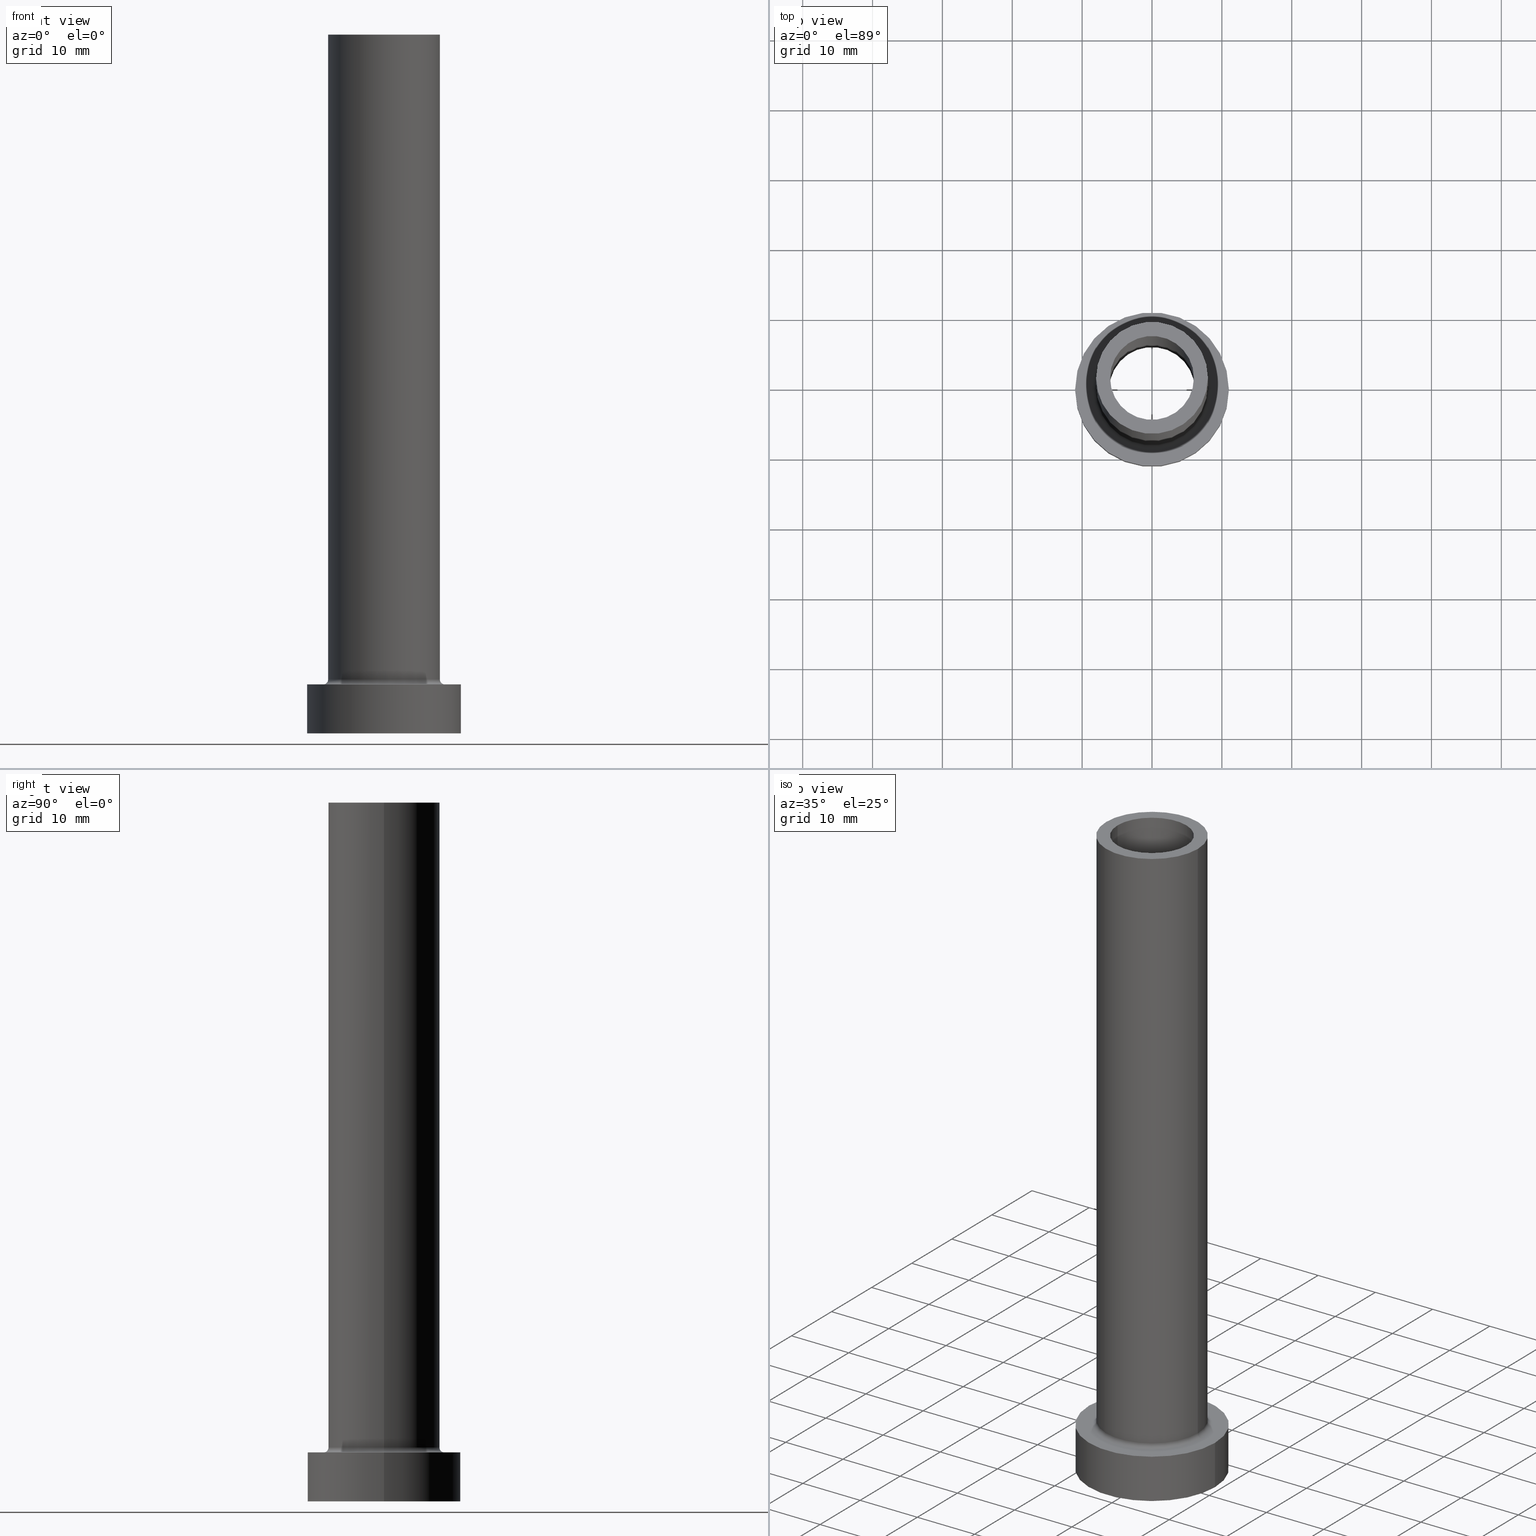
[diagram: canonical four-view strip — front | top / right | iso, engineering-drawing reading convention]
A machine part, canonical four-view strip (front | top / right | iso — engineering-drawing reading convention). The complete STEP part file that produces these views, byte-faithful:
ISO-10303-21;
HEADER;
FILE_DESCRIPTION (( 'STEP AP203' ),
    '1' );
FILE_NAME ('b1f9.STEP',
    '2023-02-13T09:09:03',
    ( '' ),
    ( '' ),
    'SwSTEP 2.0',
    'SolidWorks 2019',
    '' );
FILE_SCHEMA (( 'CONFIG_CONTROL_DESIGN' ));
ENDSEC;

DATA;
#1 = CYLINDRICAL_SURFACE ( 'NONE', #46, 8.000000000000000000 ) ;
#2 = ORIENTED_EDGE ( 'NONE', *, *, #390, .F. ) ;
#3 = DIRECTION ( 'NONE',  ( 1.000000000000000000, 0.000000000000000000, 0.000000000000000000 ) ) ;
#4 = ORIENTED_EDGE ( 'NONE', *, *, #104, .T. ) ;
#5 = LINE ( 'NONE', #253, #378 ) ;
#6 = VERTEX_POINT ( 'NONE', #13 ) ;
#7 = ADVANCED_FACE ( 'NONE', ( #339 ), #224, .F. ) ;
#8 = AXIS2_PLACEMENT_3D ( 'NONE', #307, #420, #98 ) ;
#9 = CIRCLE ( 'NONE', #139, 6.000000000000000888 ) ;
#10 = DIRECTION ( 'NONE',  ( -0.000000000000000000, -0.000000000000000000, -1.000000000000000000 ) ) ;
#11 = VERTEX_POINT ( 'NONE', #305 ) ;
#12 = CALENDAR_DATE ( 2023, 13, 2 ) ;
#13 = CARTESIAN_POINT ( 'NONE',  ( 8.000000000000000000, 9.797174393178823685E-16, 100.0000000000000000 ) ) ;
#14 = ORIENTED_EDGE ( 'NONE', *, *, #374, .F. ) ;
#15 = CARTESIAN_POINT ( 'NONE',  ( 6.150000000000000355, 7.531577814756222064E-16, 72.39482681718907031 ) ) ;
#16 = AXIS2_PLACEMENT_3D ( 'NONE', #105, #324, #70 ) ;
#17 = DIRECTION ( 'NONE',  ( 0.000000000000000000, 0.000000000000000000, 1.000000000000000000 ) ) ;
#18 = CARTESIAN_POINT ( 'NONE',  ( 0.000000000000000000, 0.000000000000000000, 7.699999999999998401 ) ) ;
#19 = DIRECTION ( 'NONE',  ( -0.000000000000000000, -0.000000000000000000, -1.000000000000000000 ) ) ;
#20 = DATE_TIME_ROLE ( 'creation_date' ) ;
#21 = CARTESIAN_POINT ( 'NONE',  ( 0.000000000000000000, 0.000000000000000000, 55.00000000000000711 ) ) ;
#22 = EDGE_CURVE ( 'NONE', #282, #147, #440, .T. ) ;
#23 = CARTESIAN_POINT ( 'NONE',  ( 0.000000000000000000, 0.000000000000000000, 55.00000000000000711 ) ) ;
#24 = CIRCLE ( 'NONE', #152, 8.000000000000000000 ) ;
#25 = CC_DESIGN_DATE_AND_TIME_ASSIGNMENT ( #59, #270, ( #92 ) ) ;
#26 = DATE_AND_TIME ( #379, #311 ) ;
#27 = FACE_OUTER_BOUND ( 'NONE', #296, .T. ) ;
#28 = EDGE_CURVE ( 'NONE', #443, #284, #53, .T. ) ;
#29 = DIRECTION ( 'NONE',  ( 0.000000000000000000, 0.000000000000000000, -1.000000000000000000 ) ) ;
#30 = CARTESIAN_POINT ( 'NONE',  ( 0.000000000000000000, 0.000000000000000000, 100.0000000000000000 ) ) ;
#31 = AXIS2_PLACEMENT_3D ( 'NONE', #315, #456, #142 ) ;
#32 = APPROVAL_DATE_TIME ( #26, #73 ) ;
#33 = CARTESIAN_POINT ( 'NONE',  ( 0.000000000000000000, 0.000000000000000000, 55.00000000000000711 ) ) ;
#34 = DIRECTION ( 'NONE',  ( 0.000000000000000000, 0.000000000000000000, 1.000000000000000000 ) ) ;
#35 = ORIENTED_EDGE ( 'NONE', *, *, #277, .T. ) ;
#36 = DIRECTION ( 'NONE',  ( 0.000000000000000000, 0.000000000000000000, 1.000000000000000000 ) ) ;
#37 = ORIENTED_EDGE ( 'NONE', *, *, #61, .T. ) ;
#38 = VECTOR ( 'NONE', #419, 1000.000000000000000 ) ;
#39 =( GEOMETRIC_REPRESENTATION_CONTEXT ( 3 ) GLOBAL_UNCERTAINTY_ASSIGNED_CONTEXT ( ( #222 ) ) GLOBAL_UNIT_ASSIGNED_CONTEXT ( ( #338, #164, #444 ) ) REPRESENTATION_CONTEXT ( 'NONE', 'WORKASPACE' ) );
#40 = CARTESIAN_POINT ( 'NONE',  ( -8.699999999999999289, 1.065442715258197248E-15, 7.699999999999998401 ) ) ;
#41 = ORIENTED_EDGE ( 'NONE', *, *, #414, .T. ) ;
#42 = CARTESIAN_POINT ( 'NONE',  ( -8.000000000000000000, 0.000000000000000000, 100.0000000000000000 ) ) ;
#43 = ORIENTED_EDGE ( 'NONE', *, *, #329, .T. ) ;
#44 = CARTESIAN_POINT ( 'NONE',  ( 0.000000000000000000, 0.000000000000000000, 7.000000000000000000 ) ) ;
#45 = VERTEX_POINT ( 'NONE', #363 ) ;
#46 = AXIS2_PLACEMENT_3D ( 'NONE', #211, #394, #360 ) ;
#47 = DIRECTION ( 'NONE',  ( 1.000000000000000000, 0.000000000000000000, 0.000000000000000000 ) ) ;
#48 = CC_DESIGN_DATE_AND_TIME_ASSIGNMENT ( #330, #20, ( #396 ) ) ;
#49 = DIRECTION ( 'NONE',  ( -0.000000000000000000, -0.000000000000000000, -1.000000000000000000 ) ) ;
#50 = ORIENTED_EDGE ( 'NONE', *, *, #457, .F. ) ;
#51 = LINE ( 'NONE', #15, #145 ) ;
#52 = ORIENTED_EDGE ( 'NONE', *, *, #86, .T. ) ;
#53 = CIRCLE ( 'NONE', #239, 8.699999999999999289 ) ;
#54 = APPROVAL_ROLE ( '' ) ;
#55 = APPROVAL_PERSON_ORGANIZATION ( #127, #301, #261 ) ;
#56 = ORIENTED_EDGE ( 'NONE', *, *, #22, .T. ) ;
#57 = PERSON_AND_ORGANIZATION ( #260, #226 ) ;
#58 = DIRECTION ( 'NONE',  ( 1.000000000000000000, 0.000000000000000000, 0.000000000000000000 ) ) ;
#59 = DATE_AND_TIME ( #237, #196 ) ;
#60 = PLANE ( 'NONE',  #160 ) ;
#61 = EDGE_CURVE ( 'NONE', #126, #320, #243, .T. ) ;
#62 = CIRCLE ( 'NONE', #335, 8.000000000000000000 ) ;
#63 = DIRECTION ( 'NONE',  ( 1.000000000000000000, 0.000000000000000000, -0.000000000000000000 ) ) ;
#64 = CIRCLE ( 'NONE', #441, 8.000000000000000000 ) ;
#65 = EDGE_CURVE ( 'NONE', #430, #151, #163, .T. ) ;
#66 = CYLINDRICAL_SURFACE ( 'NONE', #416, 6.000000000000000888 ) ;
#67 = DIRECTION ( 'NONE',  ( 0.000000000000000000, 0.000000000000000000, 1.000000000000000000 ) ) ;
#68 = PLANE ( 'NONE',  #297 ) ;
#69 = AXIS2_PLACEMENT_3D ( 'NONE', #429, #327, #351 ) ;
#70 = DIRECTION ( 'NONE',  ( 1.000000000000000000, 0.000000000000000000, 0.000000000000000000 ) ) ;
#71 = CARTESIAN_POINT ( 'NONE',  ( -8.699999999999999289, 1.065442715258197248E-15, 6.999999999999999112 ) ) ;
#72 = EDGE_LOOP ( 'NONE', ( #52, #199, #249, #433 ) ) ;
#73 = APPROVAL ( #207, 'NEUR�EN�' ) ;
#74 = FACE_OUTER_BOUND ( 'NONE', #395, .T. ) ;
#75 = ORIENTED_EDGE ( 'NONE', *, *, #193, .F. ) ;
#76 = AXIS2_PLACEMENT_3D ( 'NONE', #44, #244, #185 ) ;
#77 = DIRECTION ( 'NONE',  ( -0.000000000000000000, -0.000000000000000000, -1.000000000000000000 ) ) ;
#78 = EDGE_LOOP ( 'NONE', ( #80, #436 ) ) ;
#79 = DIRECTION ( 'NONE',  ( 1.000000000000000000, 0.000000000000000000, 0.000000000000000000 ) ) ;
#80 = ORIENTED_EDGE ( 'NONE', *, *, #28, .T. ) ;
#81 = DATE_AND_TIME ( #12, #336 ) ;
#82 = ORIENTED_EDGE ( 'NONE', *, *, #434, .F. ) ;
#83 = CIRCLE ( 'NONE', #106, 0.7000000000000000666 ) ;
#84 = AXIS2_PLACEMENT_3D ( 'NONE', #319, #34, #79 ) ;
#85 = CARTESIAN_POINT ( 'NONE',  ( 0.000000000000000000, 0.000000000000000000, 55.00000000000000711 ) ) ;
#86 = EDGE_CURVE ( 'NONE', #147, #282, #265, .T. ) ;
#87 = ORIENTED_EDGE ( 'NONE', *, *, #404, .T. ) ;
#88 = COORDINATED_UNIVERSAL_TIME_OFFSET ( 1, 0, .AHEAD. ) ;
#89 = DIRECTION ( 'NONE',  ( 1.000000000000000000, 0.000000000000000000, 0.000000000000000000 ) ) ;
#90 = AXIS2_PLACEMENT_3D ( 'NONE', #33, #275, #421 ) ;
#91 = COORDINATED_UNIVERSAL_TIME_OFFSET ( 1, 0, .AHEAD. ) ;
#92 = SECURITY_CLASSIFICATION ( '', '', #451 ) ;
#93 = EDGE_LOOP ( 'NONE', ( #325, #50 ) ) ;
#94 = CARTESIAN_POINT ( 'NONE',  ( 0.000000000000000000, 0.000000000000000000, 7.000000000000000000 ) ) ;
#95 = FACE_OUTER_BOUND ( 'NONE', #214, .T. ) ;
#96 = COORDINATED_UNIVERSAL_TIME_OFFSET ( 1, 0, .AHEAD. ) ;
#97 = AXIS2_PLACEMENT_3D ( 'NONE', #300, #445, #408 ) ;
#98 = DIRECTION ( 'NONE',  ( -1.000000000000000000, 0.000000000000000000, 0.000000000000000000 ) ) ;
#99 = PRODUCT_DEFINITION_FORMATION_WITH_SPECIFIED_SOURCE ( 'LIBOVOLN�', '', #180, .NOT_KNOWN. ) ;
#100 = MANIFOLD_SOLID_BREP ( 'Odebrat vysunut�m4', #286 ) ;
#101 = CYLINDRICAL_SURFACE ( 'NONE', #8, 6.000000000000000888 ) ;
#102 = CC_DESIGN_PERSON_AND_ORGANIZATION_ASSIGNMENT ( #156, #293, ( #99 ) ) ;
#103 = CARTESIAN_POINT ( 'NONE',  ( -11.00000000000000000, 0.000000000000000000, 7.000000000000000000 ) ) ;
#104 = EDGE_CURVE ( 'NONE', #144, #149, #62, .T. ) ;
#105 = CARTESIAN_POINT ( 'NONE',  ( 0.000000000000000000, 0.000000000000000000, 55.00000000000000711 ) ) ;
#106 = AXIS2_PLACEMENT_3D ( 'NONE', #312, #413, #29 ) ;
#107 = APPROVAL_PERSON_ORGANIZATION ( #368, #347, #54 ) ;
#108 = DIRECTION ( 'NONE',  ( 1.000000000000000000, 0.000000000000000000, 0.000000000000000000 ) ) ;
#109 = EDGE_CURVE ( 'NONE', #126, #45, #192, .T. ) ;
#110 = EDGE_CURVE ( 'NONE', #284, #443, #422, .T. ) ;
#111 = ORIENTED_EDGE ( 'NONE', *, *, #374, .T. ) ;
#112 = CARTESIAN_POINT ( 'NONE',  ( 0.000000000000000000, 0.000000000000000000, 100.0000000000000000 ) ) ;
#113 = EDGE_LOOP ( 'NONE', ( #230, #162 ) ) ;
#114 = ADVANCED_FACE ( 'NONE', ( #331 ), #258, .T. ) ;
#115 = DIRECTION ( 'NONE',  ( 1.000000000000000000, 0.000000000000000000, 0.000000000000000000 ) ) ;
#116 = EDGE_LOOP ( 'NONE', ( #369, #223, #287, #359 ) ) ;
#117 = AXIS2_PLACEMENT_3D ( 'NONE', #85, #372, #58 ) ;
#118 = CC_DESIGN_APPROVAL ( #73, ( #92 ) ) ;
#119 = PLANE ( 'NONE',  #215 ) ;
#120 = ORIENTED_EDGE ( 'NONE', *, *, #438, .F. ) ;
#121 = DATE_AND_TIME ( #407, #272 ) ;
#122 = ORIENTED_EDGE ( 'NONE', *, *, #110, .F. ) ;
#123 = EDGE_LOOP ( 'NONE', ( #357, #410, #128, #197 ) ) ;
#124 = AXIS2_PLACEMENT_3D ( 'NONE', #391, #10, #181 ) ;
#125 = MECHANICAL_CONTEXT ( 'NONE', #418, 'mechanical' ) ;
#126 = VERTEX_POINT ( 'NONE', #103 ) ;
#127 = PERSON_AND_ORGANIZATION ( #260, #226 ) ;
#128 = ORIENTED_EDGE ( 'NONE', *, *, #377, .F. ) ;
#129 = ADVANCED_FACE ( 'NONE', ( #453, #27 ), #60, .F. ) ;
#130 = CARTESIAN_POINT ( 'NONE',  ( 0.000000000000000000, 0.000000000000000000, 0.000000000000000000 ) ) ;
#131 = DIRECTION ( 'NONE',  ( 0.000000000000000000, 0.000000000000000000, -1.000000000000000000 ) ) ;
#132 = SHAPE_DEFINITION_REPRESENTATION ( #141, #216 ) ;
#133 = DIRECTION ( 'NONE',  ( 1.000000000000000000, 0.000000000000000000, 0.000000000000000000 ) ) ;
#134 = DIRECTION ( 'NONE',  ( 0.000000000000000000, 0.000000000000000000, -1.000000000000000000 ) ) ;
#135 = PERSON_AND_ORGANIZATION ( #260, #226 ) ;
#136 = DIRECTION ( 'NONE',  ( -1.000000000000000000, 0.000000000000000000, 0.000000000000000000 ) ) ;
#137 = CIRCLE ( 'NONE', #195, 8.000000000000000000 ) ;
#138 = CARTESIAN_POINT ( 'NONE',  ( -6.150000000000000355, 0.000000000000000000, 0.000000000000000000 ) ) ;
#139 = AXIS2_PLACEMENT_3D ( 'NONE', #285, #427, #3 ) ;
#140 = DIRECTION ( 'NONE',  ( 1.000000000000000000, 0.000000000000000000, 0.000000000000000000 ) ) ;
#141 = PRODUCT_DEFINITION_SHAPE ( 'NONE', 'NONE',  #396 ) ;
#142 = DIRECTION ( 'NONE',  ( 1.000000000000000000, 0.000000000000000000, 0.000000000000000000 ) ) ;
#143 = DIRECTION ( 'NONE',  ( -0.000000000000000000, -0.000000000000000000, -1.000000000000000000 ) ) ;
#144 = VERTEX_POINT ( 'NONE', #168 ) ;
#145 = VECTOR ( 'NONE', #262, 1000.000000000000000 ) ;
#146 = DIRECTION ( 'NONE',  ( -1.000000000000000000, 0.000000000000000000, 0.000000000000000000 ) ) ;
#147 = VERTEX_POINT ( 'NONE', #309 ) ;
#148 = CARTESIAN_POINT ( 'NONE',  ( 0.000000000000000000, 0.000000000000000000, 0.000000000000000000 ) ) ;
#149 = VERTEX_POINT ( 'NONE', #238 ) ;
#150 = CARTESIAN_POINT ( 'NONE',  ( 11.00000000000000000, 1.347111479062088405E-15, 7.000000000000000000 ) ) ;
#151 = VERTEX_POINT ( 'NONE', #201 ) ;
#152 = AXIS2_PLACEMENT_3D ( 'NONE', #432, #177, #115 ) ;
#153 = FACE_OUTER_BOUND ( 'NONE', #113, .T. ) ;
#154 = VERTEX_POINT ( 'NONE', #340 ) ;
#155 = ADVANCED_FACE ( 'NONE', ( #166 ), #308, .F. ) ;
#156 = PERSON_AND_ORGANIZATION ( #260, #226 ) ;
#157 = ORIENTED_EDGE ( 'NONE', *, *, #193, .T. ) ;
#158 = CC_DESIGN_PERSON_AND_ORGANIZATION_ASSIGNMENT ( #57, #198, ( #99 ) ) ;
#159 = CARTESIAN_POINT ( 'NONE',  ( 0.000000000000000000, 0.000000000000000000, 7.000000000000000000 ) ) ;
#160 = AXIS2_PLACEMENT_3D ( 'NONE', #23, #240, #169 ) ;
#161 = PERSON_AND_ORGANIZATION_ROLE ( 'design_owner' ) ;
#162 = ORIENTED_EDGE ( 'NONE', *, *, #266, .T. ) ;
#163 = LINE ( 'NONE', #447, #208 ) ;
#164 =( NAMED_UNIT ( * ) PLANE_ANGLE_UNIT ( ) SI_UNIT ( $, .RADIAN. ) );
#165 = CARTESIAN_POINT ( 'NONE',  ( 0.000000000000000000, 0.000000000000000000, 7.699999999999998401 ) ) ;
#166 = FACE_OUTER_BOUND ( 'NONE', #72, .T. ) ;
#167 = COORDINATED_UNIVERSAL_TIME_OFFSET ( 1, 0, .AHEAD. ) ;
#168 = CARTESIAN_POINT ( 'NONE',  ( 8.000000000000000000, 9.797174393178823685E-16, 7.699999999999998401 ) ) ;
#169 = DIRECTION ( 'NONE',  ( 1.000000000000000000, 0.000000000000000000, -0.000000000000000000 ) ) ;
#170 = TOROIDAL_SURFACE ( 'NONE', #31, 8.699999999999999289, 0.6999999999999999556 ) ;
#171 = DIRECTION ( 'NONE',  ( 0.000000000000000000, 0.000000000000000000, 1.000000000000000000 ) ) ;
#172 = CC_DESIGN_SECURITY_CLASSIFICATION ( #92, ( #99 ) ) ;
#173 = FACE_OUTER_BOUND ( 'NONE', #123, .T. ) ;
#174 = APPLICATION_CONTEXT ( 'configuration controlled 3d designs of mechanical parts and assemblies' ) ;
#175 = CARTESIAN_POINT ( 'NONE',  ( 0.000000000000000000, 0.000000000000000000, 0.000000000000000000 ) ) ;
#176 = ORIENTED_EDGE ( 'NONE', *, *, #28, .F. ) ;
#177 = DIRECTION ( 'NONE',  ( 0.000000000000000000, 0.000000000000000000, 1.000000000000000000 ) ) ;
#178 = ORIENTED_EDGE ( 'NONE', *, *, #22, .F. ) ;
#179 = AXIS2_PLACEMENT_3D ( 'NONE', #175, #36, #108 ) ;
#180 = PRODUCT ( 'b1f9', 'b1f9', '', ( #125 ) ) ;
#181 = DIRECTION ( 'NONE',  ( -1.000000000000000000, 0.000000000000000000, 0.000000000000000000 ) ) ;
#182 = VERTEX_POINT ( 'NONE', #138 ) ;
#183 = DIRECTION ( 'NONE',  ( -0.000000000000000000, -0.000000000000000000, -1.000000000000000000 ) ) ;
#184 = EDGE_LOOP ( 'NONE', ( #228, #218, #157, #122 ) ) ;
#185 = DIRECTION ( 'NONE',  ( 1.000000000000000000, 0.000000000000000000, 0.000000000000000000 ) ) ;
#186 = EDGE_LOOP ( 'NONE', ( #82, #56, #367, #43 ) ) ;
#187 = ADVANCED_FACE ( 'NONE', ( #173 ), #101, .F. ) ;
#188 = AXIS2_PLACEMENT_3D ( 'NONE', #458, #143, #279 ) ;
#189 = PERSON_AND_ORGANIZATION ( #260, #226 ) ;
#190 = ORIENTED_EDGE ( 'NONE', *, *, #109, .F. ) ;
#191 = ADVANCED_FACE ( 'NONE', ( #206 ), #66, .F. ) ;
#192 = LINE ( 'NONE', #439, #310 ) ;
#193 = EDGE_CURVE ( 'NONE', #144, #443, #83, .T. ) ;
#194 = CARTESIAN_POINT ( 'NONE',  ( 0.000000000000000000, 0.000000000000000000, 7.000000000000000000 ) ) ;
#195 = AXIS2_PLACEMENT_3D ( 'NONE', #30, #171, #140 ) ;
#196 = LOCAL_TIME ( 10, 9, 3.000000000000000000, #167 ) ;
#197 = ORIENTED_EDGE ( 'NONE', *, *, #442, .F. ) ;
#198 = PERSON_AND_ORGANIZATION_ROLE ( 'design_supplier' ) ;
#199 = ORIENTED_EDGE ( 'NONE', *, *, #434, .T. ) ;
#200 = EDGE_CURVE ( 'NONE', #6, #144, #455, .T. ) ;
#201 = CARTESIAN_POINT ( 'NONE',  ( 6.000000000000000888, 7.347880794884119736E-16, 55.00000000000000711 ) ) ;
#202 = EDGE_CURVE ( 'NONE', #147, #182, #205, .T. ) ;
#203 = AXIS2_PLACEMENT_3D ( 'NONE', #130, #49, #299 ) ;
#204 = FACE_BOUND ( 'NONE', #78, .T. ) ;
#205 = LINE ( 'NONE', #241, #361 ) ;
#206 = FACE_OUTER_BOUND ( 'NONE', #116, .T. ) ;
#207 = APPROVAL_STATUS ( 'not_yet_approved' ) ;
#208 = VECTOR ( 'NONE', #131, 1000.000000000000000 ) ;
#209 = FACE_OUTER_BOUND ( 'NONE', #403, .T. ) ;
#210 = CYLINDRICAL_SURFACE ( 'NONE', #188, 8.000000000000000000 ) ;
#211 = CARTESIAN_POINT ( 'NONE',  ( 0.000000000000000000, 0.000000000000000000, 100.0000000000000000 ) ) ;
#212 = ORIENTED_EDGE ( 'NONE', *, *, #86, .F. ) ;
#213 = CARTESIAN_POINT ( 'NONE',  ( 6.000000000000000888, 7.347880794884119736E-16, 100.0000000000000000 ) ) ;
#214 = EDGE_LOOP ( 'NONE', ( #247, #323 ) ) ;
#215 = AXIS2_PLACEMENT_3D ( 'NONE', #112, #250, #358 ) ;
#216 = ADVANCED_BREP_SHAPE_REPRESENTATION ( 'b1f9', ( #100, #288 ), #39 ) ;
#217 = CARTESIAN_POINT ( 'NONE',  ( -8.000000000000000000, 0.000000000000000000, 100.0000000000000000 ) ) ;
#218 = ORIENTED_EDGE ( 'NONE', *, *, #104, .F. ) ;
#219 = CARTESIAN_POINT ( 'NONE',  ( -6.000000000000000888, 0.000000000000000000, 100.0000000000000000 ) ) ;
#220 = ORIENTED_EDGE ( 'NONE', *, *, #322, .F. ) ;
#221 = DIRECTION ( 'NONE',  ( 0.000000000000000000, 0.000000000000000000, 1.000000000000000000 ) ) ;
#222 = UNCERTAINTY_MEASURE_WITH_UNIT (LENGTH_MEASURE( 1.000000000000000082E-05 ), #338, 'distance_accuracy_value', 'NONE');
#223 = ORIENTED_EDGE ( 'NONE', *, *, #322, .T. ) ;
#224 = TOROIDAL_SURFACE ( 'NONE', #97, 8.699999999999999289, 0.6999999999999999556 ) ;
#225 = ADVANCED_FACE ( 'NONE', ( #346, #95 ), #376, .F. ) ;
#226 = ORGANIZATION ( 'NEUR�EN�', 'NEUR�EN�', '' ) ;
#227 = PERSON_AND_ORGANIZATION ( #260, #226 ) ;
#228 = ORIENTED_EDGE ( 'NONE', *, *, #314, .F. ) ;
#229 = CARTESIAN_POINT ( 'NONE',  ( 0.000000000000000000, 0.000000000000000000, 0.000000000000000000 ) ) ;
#230 = ORIENTED_EDGE ( 'NONE', *, *, #352, .T. ) ;
#231 = CALENDAR_DATE ( 2023, 13, 2 ) ;
#232 = EDGE_LOOP ( 'NONE', ( #428, #354, #328, #256 ) ) ;
#233 = CC_DESIGN_PERSON_AND_ORGANIZATION_ASSIGNMENT ( #135, #343, ( #92 ) ) ;
#234 = ORIENTED_EDGE ( 'NONE', *, *, #438, .T. ) ;
#235 = ADVANCED_FACE ( 'NONE', ( #204, #383 ), #68, .T. ) ;
#236 = CARTESIAN_POINT ( 'NONE',  ( 0.000000000000000000, 0.000000000000000000, 0.000000000000000000 ) ) ;
#237 = CALENDAR_DATE ( 2023, 13, 2 ) ;
#238 = CARTESIAN_POINT ( 'NONE',  ( -8.000000000000000000, 0.000000000000000000, 7.699999999999998401 ) ) ;
#239 = AXIS2_PLACEMENT_3D ( 'NONE', #194, #19, #89 ) ;
#240 = DIRECTION ( 'NONE',  ( 0.000000000000000000, 0.000000000000000000, 1.000000000000000000 ) ) ;
#241 = CARTESIAN_POINT ( 'NONE',  ( -6.150000000000000355, 0.000000000000000000, 72.39482681718907031 ) ) ;
#242 = DIRECTION ( 'NONE',  ( -1.000000000000000000, 0.000000000000000000, 0.000000000000000000 ) ) ;
#243 = CIRCLE ( 'NONE', #448, 11.00000000000000000 ) ;
#244 = DIRECTION ( 'NONE',  ( 0.000000000000000000, 0.000000000000000000, 1.000000000000000000 ) ) ;
#245 = CC_DESIGN_PERSON_AND_ORGANIZATION_ASSIGNMENT ( #189, #161, ( #180 ) ) ;
#246 = CARTESIAN_POINT ( 'NONE',  ( 0.000000000000000000, 0.000000000000000000, 72.39482681718907031 ) ) ;
#247 = ORIENTED_EDGE ( 'NONE', *, *, #292, .F. ) ;
#248 = CYLINDRICAL_SURFACE ( 'NONE', #124, 11.00000000000000000 ) ;
#249 = ORIENTED_EDGE ( 'NONE', *, *, #457, .T. ) ;
#250 = DIRECTION ( 'NONE',  ( 0.000000000000000000, 0.000000000000000000, 1.000000000000000000 ) ) ;
#251 = ORIENTED_EDGE ( 'NONE', *, *, #381, .T. ) ;
#252 = AXIS2_PLACEMENT_3D ( 'NONE', #148, #77, #316 ) ;
#253 = CARTESIAN_POINT ( 'NONE',  ( 11.00000000000000000, 1.347111479062088405E-15, 7.000000000000000000 ) ) ;
#254 = ORIENTED_EDGE ( 'NONE', *, *, #266, .F. ) ;
#255 = CARTESIAN_POINT ( 'NONE',  ( 8.699999999999999289, 0.000000000000000000, 6.999999999999999112 ) ) ;
#256 = ORIENTED_EDGE ( 'NONE', *, *, #292, .T. ) ;
#257 = APPROVAL_STATUS ( 'not_yet_approved' ) ;
#258 = CYLINDRICAL_SURFACE ( 'NONE', #276, 11.00000000000000000 ) ;
#259 = CIRCLE ( 'NONE', #84, 6.000000000000000888 ) ;
#260 = PERSON ( 'NEUR�EN�', 'NEUR�EN�', 'NEUR�EN�', ('NEUR�EN�'), ('NEUR�EN�'), ('NEUR�EN�') ) ;
#261 = APPROVAL_ROLE ( '' ) ;
#262 = DIRECTION ( 'NONE',  ( 0.000000000000000000, 0.000000000000000000, -1.000000000000000000 ) ) ;
#263 = EDGE_LOOP ( 'NONE', ( #389, #35 ) ) ;
#264 = ORIENTED_EDGE ( 'NONE', *, *, #200, .F. ) ;
#265 = CIRCLE ( 'NONE', #117, 6.150000000000000355 ) ;
#266 = EDGE_CURVE ( 'NONE', #6, #365, #137, .T. ) ;
#267 = VERTEX_POINT ( 'NONE', #384 ) ;
#268 = DIRECTION ( 'NONE',  ( -1.000000000000000000, 0.000000000000000000, 0.000000000000000000 ) ) ;
#269 = ADVANCED_FACE ( 'NONE', ( #209 ), #170, .F. ) ;
#270 = DATE_TIME_ROLE ( 'classification_date' ) ;
#271 = DIRECTION ( 'NONE',  ( 0.000000000000000000, 0.000000000000000000, -1.000000000000000000 ) ) ;
#272 = LOCAL_TIME ( 10, 9, 3.000000000000000000, #437 ) ;
#273 = CARTESIAN_POINT ( 'NONE',  ( 8.000000000000000000, 9.797174393178823685E-16, 100.0000000000000000 ) ) ;
#274 = DIRECTION ( 'NONE',  ( 0.000000000000000000, 0.000000000000000000, -1.000000000000000000 ) ) ;
#275 = DIRECTION ( 'NONE',  ( 0.000000000000000000, 0.000000000000000000, 1.000000000000000000 ) ) ;
#276 = AXIS2_PLACEMENT_3D ( 'NONE', #159, #415, #268 ) ;
#277 = EDGE_CURVE ( 'NONE', #151, #154, #385, .T. ) ;
#278 = CIRCLE ( 'NONE', #417, 0.6999999999999992895 ) ;
#279 = DIRECTION ( 'NONE',  ( -1.000000000000000000, 0.000000000000000000, 0.000000000000000000 ) ) ;
#280 = EDGE_LOOP ( 'NONE', ( #254, #459, #4, #14 ) ) ;
#281 = DIRECTION ( 'NONE',  ( -0.000000000000000000, -0.000000000000000000, -1.000000000000000000 ) ) ;
#282 = VERTEX_POINT ( 'NONE', #373 ) ;
#283 = FACE_OUTER_BOUND ( 'NONE', #280, .T. ) ;
#284 = VERTEX_POINT ( 'NONE', #71 ) ;
#285 = CARTESIAN_POINT ( 'NONE',  ( 0.000000000000000000, 0.000000000000000000, 100.0000000000000000 ) ) ;
#286 = CLOSED_SHELL ( 'NONE', ( #187, #155, #269, #348, #304, #114, #235, #225, #425, #364, #7, #431, #129, #191 ) ) ;
#287 = ORIENTED_EDGE ( 'NONE', *, *, #442, .T. ) ;
#288 = AXIS2_PLACEMENT_3D ( 'NONE', #229, #366, #295 ) ;
#289 = FACE_BOUND ( 'NONE', #317, .T. ) ;
#290 = DESIGN_CONTEXT ( 'detailed design', #174, 'design' ) ;
#291 = EDGE_LOOP ( 'NONE', ( #37, #41 ) ) ;
#292 = EDGE_CURVE ( 'NONE', #45, #11, #349, .T. ) ;
#293 = PERSON_AND_ORGANIZATION_ROLE ( 'creator' ) ;
#294 = DIRECTION ( 'NONE',  ( 1.000000000000000000, 0.000000000000000000, 0.000000000000000000 ) ) ;
#295 = DIRECTION ( 'NONE',  ( 1.000000000000000000, 0.000000000000000000, 0.000000000000000000 ) ) ;
#296 = EDGE_LOOP ( 'NONE', ( #212, #178 ) ) ;
#297 = AXIS2_PLACEMENT_3D ( 'NONE', #345, #67, #344 ) ;
#298 = LOCAL_TIME ( 10, 9, 3.000000000000000000, #88 ) ;
#299 = DIRECTION ( 'NONE',  ( 1.000000000000000000, 0.000000000000000000, 0.000000000000000000 ) ) ;
#300 = CARTESIAN_POINT ( 'NONE',  ( 0.000000000000000000, 0.000000000000000000, 7.699999999999998401 ) ) ;
#301 = APPROVAL ( #405, 'NEUR�EN�' ) ;
#302 = APPLICATION_PROTOCOL_DEFINITION ( 'international standard', 'config_control_design', 1994, #174 ) ;
#303 = DIRECTION ( 'NONE',  ( 0.000000000000000000, 0.000000000000000000, 1.000000000000000000 ) ) ;
#304 = ADVANCED_FACE ( 'NONE', ( #387 ), #248, .T. ) ;
#305 = CARTESIAN_POINT ( 'NONE',  ( 11.00000000000000000, 1.347111479062088405E-15, 0.000000000000000000 ) ) ;
#306 = CIRCLE ( 'NONE', #76, 11.00000000000000000 ) ;
#307 = CARTESIAN_POINT ( 'NONE',  ( 0.000000000000000000, 0.000000000000000000, 100.0000000000000000 ) ) ;
#308 = CYLINDRICAL_SURFACE ( 'NONE', #326, 6.150000000000000355 ) ;
#309 = CARTESIAN_POINT ( 'NONE',  ( -6.150000000000000355, 0.000000000000000000, 55.00000000000000711 ) ) ;
#310 = VECTOR ( 'NONE', #412, 1000.000000000000000 ) ;
#311 = LOCAL_TIME ( 10, 9, 3.000000000000000000, #96 ) ;
#312 = CARTESIAN_POINT ( 'NONE',  ( 8.699999999999999289, 0.000000000000000000, 7.699999999999998401 ) ) ;
#313 = CC_DESIGN_PERSON_AND_ORGANIZATION_ASSIGNMENT ( #227, #399, ( #396 ) ) ;
#314 = EDGE_CURVE ( 'NONE', #149, #284, #278, .T. ) ;
#315 = CARTESIAN_POINT ( 'NONE',  ( 0.000000000000000000, 0.000000000000000000, 7.699999999999998401 ) ) ;
#316 = DIRECTION ( 'NONE',  ( 1.000000000000000000, 0.000000000000000000, 0.000000000000000000 ) ) ;
#317 = EDGE_LOOP ( 'NONE', ( #2, #220 ) ) ;
#318 = CIRCLE ( 'NONE', #16, 6.000000000000000888 ) ;
#319 = CARTESIAN_POINT ( 'NONE',  ( 0.000000000000000000, 0.000000000000000000, 100.0000000000000000 ) ) ;
#320 = VERTEX_POINT ( 'NONE', #150 ) ;
#321 = DIRECTION ( 'NONE',  ( -1.000000000000000000, 1.224646799147353207E-16, 0.000000000000000000 ) ) ;
#322 = EDGE_CURVE ( 'NONE', #430, #392, #9, .T. ) ;
#323 = ORIENTED_EDGE ( 'NONE', *, *, #404, .F. ) ;
#324 = DIRECTION ( 'NONE',  ( 0.000000000000000000, 0.000000000000000000, 1.000000000000000000 ) ) ;
#325 = ORIENTED_EDGE ( 'NONE', *, *, #329, .F. ) ;
#326 = AXIS2_PLACEMENT_3D ( 'NONE', #452, #274, #136 ) ;
#327 = DIRECTION ( 'NONE',  ( 0.000000000000000000, 0.000000000000000000, 1.000000000000000000 ) ) ;
#328 = ORIENTED_EDGE ( 'NONE', *, *, #109, .T. ) ;
#329 = EDGE_CURVE ( 'NONE', #182, #267, #386, .T. ) ;
#330 = DATE_AND_TIME ( #231, #298 ) ;
#331 = FACE_OUTER_BOUND ( 'NONE', #232, .T. ) ;
#332 = DIRECTION ( 'NONE',  ( 0.000000000000000000, 0.000000000000000000, -1.000000000000000000 ) ) ;
#333 = DIRECTION ( 'NONE',  ( -0.000000000000000000, -0.000000000000000000, -1.000000000000000000 ) ) ;
#334 = CARTESIAN_POINT ( 'NONE',  ( 0.000000000000000000, 0.000000000000000000, 7.000000000000000000 ) ) ;
#335 = AXIS2_PLACEMENT_3D ( 'NONE', #165, #449, #133 ) ;
#336 = LOCAL_TIME ( 10, 9, 3.000000000000000000, #91 ) ;
#337 = DIRECTION ( 'NONE',  ( 1.000000000000000000, 0.000000000000000000, 0.000000000000000000 ) ) ;
#338 =( LENGTH_UNIT ( ) NAMED_UNIT ( * ) SI_UNIT ( .MILLI., .METRE. ) );
#339 = FACE_OUTER_BOUND ( 'NONE', #184, .T. ) ;
#340 = CARTESIAN_POINT ( 'NONE',  ( -6.000000000000000888, 0.000000000000000000, 55.00000000000000711 ) ) ;
#341 = AXIS2_PLACEMENT_3D ( 'NONE', #236, #380, #63 ) ;
#342 = PRODUCT_RELATED_PRODUCT_CATEGORY ( 'detail', '', ( #180 ) ) ;
#343 = PERSON_AND_ORGANIZATION_ROLE ( 'classification_officer' ) ;
#344 = DIRECTION ( 'NONE',  ( 1.000000000000000000, 0.000000000000000000, -0.000000000000000000 ) ) ;
#345 = CARTESIAN_POINT ( 'NONE',  ( 0.000000000000000000, 0.000000000000000000, 7.000000000000000000 ) ) ;
#346 = FACE_BOUND ( 'NONE', #93, .T. ) ;
#347 = APPROVAL ( #257, 'NEUR�EN�' ) ;
#348 = ADVANCED_FACE ( 'NONE', ( #283 ), #1, .T. ) ;
#349 = CIRCLE ( 'NONE', #69, 11.00000000000000000 ) ;
#350 = CIRCLE ( 'NONE', #203, 6.150000000000000355 ) ;
#351 = DIRECTION ( 'NONE',  ( 1.000000000000000000, 0.000000000000000000, 0.000000000000000000 ) ) ;
#352 = EDGE_CURVE ( 'NONE', #365, #6, #24, .T. ) ;
#353 = FACE_OUTER_BOUND ( 'NONE', #186, .T. ) ;
#354 = ORIENTED_EDGE ( 'NONE', *, *, #61, .F. ) ;
#355 = VECTOR ( 'NONE', #332, 1000.000000000000000 ) ;
#356 = DIRECTION ( 'NONE',  ( 1.224646799147353207E-16, 1.000000000000000000, -0.000000000000000000 ) ) ;
#357 = ORIENTED_EDGE ( 'NONE', *, *, #390, .T. ) ;
#358 = DIRECTION ( 'NONE',  ( 1.000000000000000000, 0.000000000000000000, -0.000000000000000000 ) ) ;
#359 = ORIENTED_EDGE ( 'NONE', *, *, #277, .F. ) ;
#360 = DIRECTION ( 'NONE',  ( -1.000000000000000000, 0.000000000000000000, 0.000000000000000000 ) ) ;
#361 = VECTOR ( 'NONE', #271, 1000.000000000000000 ) ;
#362 = LINE ( 'NONE', #401, #355 ) ;
#363 = CARTESIAN_POINT ( 'NONE',  ( -11.00000000000000000, 0.000000000000000000, 0.000000000000000000 ) ) ;
#364 = ADVANCED_FACE ( 'NONE', ( #289, #153 ), #119, .T. ) ;
#365 = VERTEX_POINT ( 'NONE', #217 ) ;
#366 = DIRECTION ( 'NONE',  ( 0.000000000000000000, 0.000000000000000000, 1.000000000000000000 ) ) ;
#367 = ORIENTED_EDGE ( 'NONE', *, *, #202, .T. ) ;
#368 = PERSON_AND_ORGANIZATION ( #260, #226 ) ;
#369 = ORIENTED_EDGE ( 'NONE', *, *, #65, .F. ) ;
#370 = AXIS2_PLACEMENT_3D ( 'NONE', #94, #333, #47 ) ;
#371 = APPROVAL_DATE_TIME ( #81, #347 ) ;
#372 = DIRECTION ( 'NONE',  ( 0.000000000000000000, 0.000000000000000000, 1.000000000000000000 ) ) ;
#373 = CARTESIAN_POINT ( 'NONE',  ( 6.150000000000000355, 7.531577814756222064E-16, 55.00000000000000711 ) ) ;
#374 = EDGE_CURVE ( 'NONE', #365, #149, #397, .T. ) ;
#375 = PERSON_AND_ORGANIZATION ( #260, #226 ) ;
#376 = PLANE ( 'NONE',  #341 ) ;
#377 = EDGE_CURVE ( 'NONE', #154, #151, #318, .T. ) ;
#378 = VECTOR ( 'NONE', #281, 1000.000000000000000 ) ;
#379 = CALENDAR_DATE ( 2023, 13, 2 ) ;
#380 = DIRECTION ( 'NONE',  ( 0.000000000000000000, 0.000000000000000000, 1.000000000000000000 ) ) ;
#381 = EDGE_CURVE ( 'NONE', #320, #11, #5, .T. ) ;
#382 = APPROVAL_ROLE ( '' ) ;
#383 = FACE_OUTER_BOUND ( 'NONE', #291, .T. ) ;
#384 = CARTESIAN_POINT ( 'NONE',  ( 6.150000000000000355, 7.531577814756222064E-16, 0.000000000000000000 ) ) ;
#385 = CIRCLE ( 'NONE', #90, 6.000000000000000888 ) ;
#386 = CIRCLE ( 'NONE', #252, 6.150000000000000355 ) ;
#387 = FACE_OUTER_BOUND ( 'NONE', #406, .T. ) ;
#388 = DIRECTION ( 'NONE',  ( 0.000000000000000000, 0.000000000000000000, -1.000000000000000000 ) ) ;
#389 = ORIENTED_EDGE ( 'NONE', *, *, #377, .T. ) ;
#390 = EDGE_CURVE ( 'NONE', #392, #430, #259, .T. ) ;
#391 = CARTESIAN_POINT ( 'NONE',  ( 0.000000000000000000, 0.000000000000000000, 7.000000000000000000 ) ) ;
#392 = VERTEX_POINT ( 'NONE', #219 ) ;
#393 = CC_DESIGN_APPROVAL ( #347, ( #99 ) ) ;
#394 = DIRECTION ( 'NONE',  ( -0.000000000000000000, -0.000000000000000000, -1.000000000000000000 ) ) ;
#395 = EDGE_LOOP ( 'NONE', ( #264, #400, #111, #234 ) ) ;
#396 = PRODUCT_DEFINITION ( 'NEZN�M�', '', #99, #290 ) ;
#397 = LINE ( 'NONE', #42, #461 ) ;
#398 = ORIENTED_EDGE ( 'NONE', *, *, #314, .T. ) ;
#399 = PERSON_AND_ORGANIZATION_ROLE ( 'creator' ) ;
#400 = ORIENTED_EDGE ( 'NONE', *, *, #352, .F. ) ;
#401 = CARTESIAN_POINT ( 'NONE',  ( -6.000000000000000888, 0.000000000000000000, 100.0000000000000000 ) ) ;
#402 = AXIS2_PLACEMENT_3D ( 'NONE', #246, #388, #146 ) ;
#403 = EDGE_LOOP ( 'NONE', ( #120, #398, #176, #75 ) ) ;
#404 = EDGE_CURVE ( 'NONE', #11, #45, #423, .T. ) ;
#405 = APPROVAL_STATUS ( 'not_yet_approved' ) ;
#406 = EDGE_LOOP ( 'NONE', ( #426, #251, #87, #190 ) ) ;
#407 = CALENDAR_DATE ( 2023, 13, 2 ) ;
#408 = DIRECTION ( 'NONE',  ( 1.000000000000000000, 0.000000000000000000, 0.000000000000000000 ) ) ;
#409 = APPROVAL_DATE_TIME ( #121, #301 ) ;
#410 = ORIENTED_EDGE ( 'NONE', *, *, #65, .T. ) ;
#411 = CC_DESIGN_APPROVAL ( #301, ( #396 ) ) ;
#412 = DIRECTION ( 'NONE',  ( -0.000000000000000000, -0.000000000000000000, -1.000000000000000000 ) ) ;
#413 = DIRECTION ( 'NONE',  ( 0.000000000000000000, -1.000000000000000000, 0.000000000000000000 ) ) ;
#414 = EDGE_CURVE ( 'NONE', #320, #126, #306, .T. ) ;
#415 = DIRECTION ( 'NONE',  ( -0.000000000000000000, -0.000000000000000000, -1.000000000000000000 ) ) ;
#416 = AXIS2_PLACEMENT_3D ( 'NONE', #450, #134, #242 ) ;
#417 = AXIS2_PLACEMENT_3D ( 'NONE', #40, #356, #321 ) ;
#418 = APPLICATION_CONTEXT ( 'configuration controlled 3d designs of mechanical parts and assemblies' ) ;
#419 = DIRECTION ( 'NONE',  ( -0.000000000000000000, -0.000000000000000000, -1.000000000000000000 ) ) ;
#420 = DIRECTION ( 'NONE',  ( 0.000000000000000000, 0.000000000000000000, -1.000000000000000000 ) ) ;
#421 = DIRECTION ( 'NONE',  ( 1.000000000000000000, 0.000000000000000000, 0.000000000000000000 ) ) ;
#422 = CIRCLE ( 'NONE', #370, 8.699999999999999289 ) ;
#423 = CIRCLE ( 'NONE', #179, 11.00000000000000000 ) ;
#424 = CYLINDRICAL_SURFACE ( 'NONE', #402, 6.150000000000000355 ) ;
#425 = ADVANCED_FACE ( 'NONE', ( #74 ), #210, .T. ) ;
#426 = ORIENTED_EDGE ( 'NONE', *, *, #414, .F. ) ;
#427 = DIRECTION ( 'NONE',  ( 0.000000000000000000, 0.000000000000000000, 1.000000000000000000 ) ) ;
#428 = ORIENTED_EDGE ( 'NONE', *, *, #381, .F. ) ;
#429 = CARTESIAN_POINT ( 'NONE',  ( 0.000000000000000000, 0.000000000000000000, 0.000000000000000000 ) ) ;
#430 = VERTEX_POINT ( 'NONE', #213 ) ;
#431 = ADVANCED_FACE ( 'NONE', ( #353 ), #424, .F. ) ;
#432 = CARTESIAN_POINT ( 'NONE',  ( 0.000000000000000000, 0.000000000000000000, 100.0000000000000000 ) ) ;
#433 = ORIENTED_EDGE ( 'NONE', *, *, #202, .F. ) ;
#434 = EDGE_CURVE ( 'NONE', #282, #267, #51, .T. ) ;
#435 = APPLICATION_PROTOCOL_DEFINITION ( 'international standard', 'config_control_design', 1994, #418 ) ;
#436 = ORIENTED_EDGE ( 'NONE', *, *, #110, .T. ) ;
#437 = COORDINATED_UNIVERSAL_TIME_OFFSET ( 1, 0, .AHEAD. ) ;
#438 = EDGE_CURVE ( 'NONE', #149, #144, #64, .T. ) ;
#439 = CARTESIAN_POINT ( 'NONE',  ( -11.00000000000000000, 0.000000000000000000, 7.000000000000000000 ) ) ;
#440 = CIRCLE ( 'NONE', #460, 6.150000000000000355 ) ;
#441 = AXIS2_PLACEMENT_3D ( 'NONE', #18, #221, #446 ) ;
#442 = EDGE_CURVE ( 'NONE', #392, #154, #362, .T. ) ;
#443 = VERTEX_POINT ( 'NONE', #255 ) ;
#444 =( NAMED_UNIT ( * ) SI_UNIT ( $, .STERADIAN. ) SOLID_ANGLE_UNIT ( ) );
#445 = DIRECTION ( 'NONE',  ( 0.000000000000000000, 0.000000000000000000, 1.000000000000000000 ) ) ;
#446 = DIRECTION ( 'NONE',  ( 1.000000000000000000, 0.000000000000000000, 0.000000000000000000 ) ) ;
#447 = CARTESIAN_POINT ( 'NONE',  ( 6.000000000000000888, 7.347880794884119736E-16, 100.0000000000000000 ) ) ;
#448 = AXIS2_PLACEMENT_3D ( 'NONE', #334, #17, #337 ) ;
#449 = DIRECTION ( 'NONE',  ( 0.000000000000000000, 0.000000000000000000, 1.000000000000000000 ) ) ;
#450 = CARTESIAN_POINT ( 'NONE',  ( 0.000000000000000000, 0.000000000000000000, 100.0000000000000000 ) ) ;
#451 = SECURITY_CLASSIFICATION_LEVEL ( 'unclassified' ) ;
#452 = CARTESIAN_POINT ( 'NONE',  ( 0.000000000000000000, 0.000000000000000000, 72.39482681718907031 ) ) ;
#453 = FACE_BOUND ( 'NONE', #263, .T. ) ;
#454 = APPROVAL_PERSON_ORGANIZATION ( #375, #73, #382 ) ;
#455 = LINE ( 'NONE', #273, #38 ) ;
#456 = DIRECTION ( 'NONE',  ( 0.000000000000000000, 0.000000000000000000, 1.000000000000000000 ) ) ;
#457 = EDGE_CURVE ( 'NONE', #267, #182, #350, .T. ) ;
#458 = CARTESIAN_POINT ( 'NONE',  ( 0.000000000000000000, 0.000000000000000000, 100.0000000000000000 ) ) ;
#459 = ORIENTED_EDGE ( 'NONE', *, *, #200, .T. ) ;
#460 = AXIS2_PLACEMENT_3D ( 'NONE', #21, #303, #294 ) ;
#461 = VECTOR ( 'NONE', #183, 1000.000000000000000 ) ;
ENDSEC;
END-ISO-10303-21;
